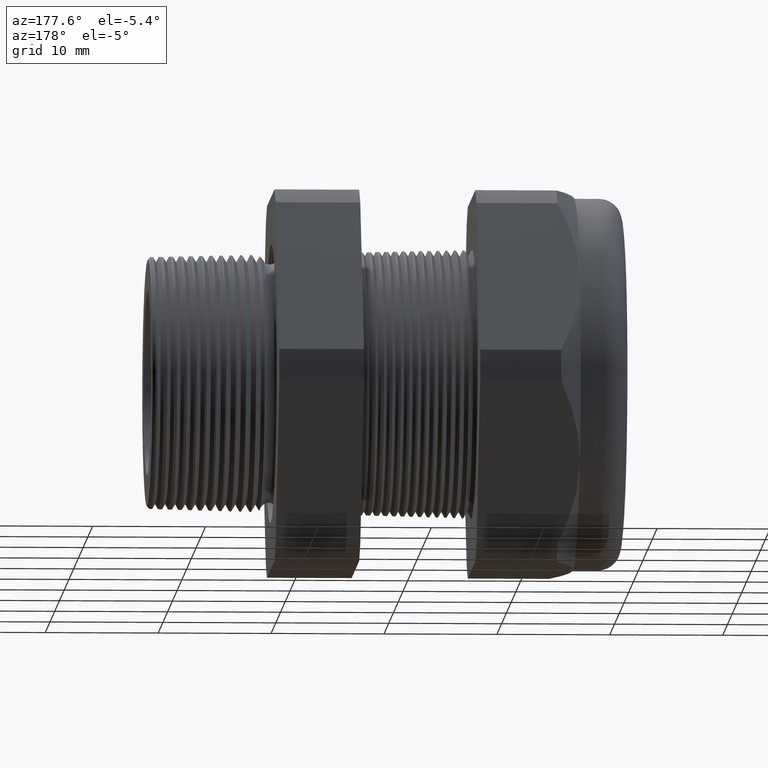
[diagram: clean part render]
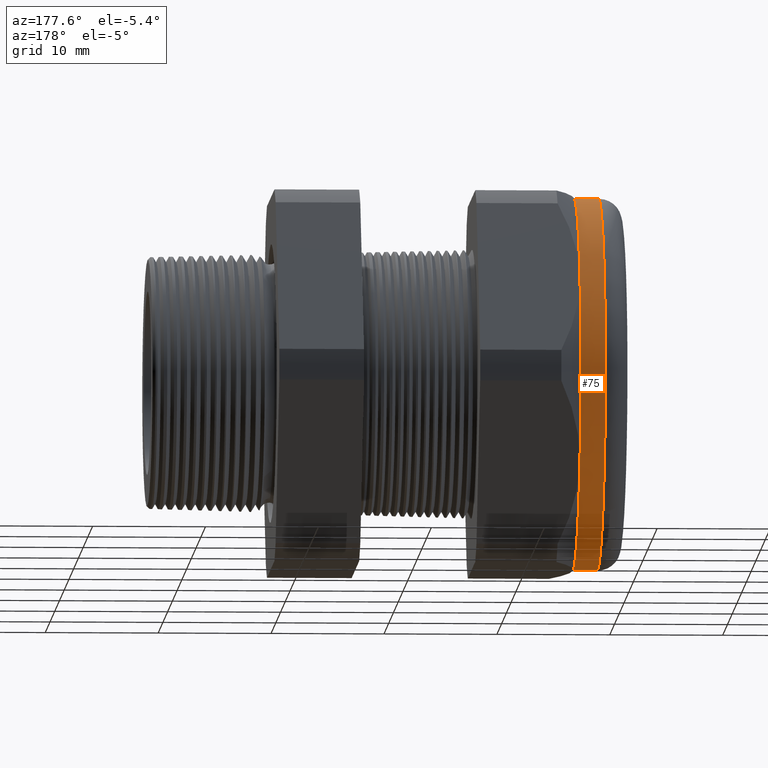
[diagram: same view with one face highlighted and labeled with its STEP entity id]
A machine part, auxiliary view. The second image highlights one B-rep face of the part: STEP entity #75.
In plain terms, the highlighted cylindrical surface (partial cylindrical patch) has radius 16.51 mm, axis along (1, 0, 0).
Its self-contained STEP definition (entity closure, byte-faithful):
#16 = VERTEX_POINT ( 'NONE', #887 ) ;
#29 = ORIENTED_EDGE ( 'NONE', *, *, #31, .F. ) ;
#31 = EDGE_CURVE ( 'NONE', #16, #33, #923, .T. ) ;
#33 = VERTEX_POINT ( 'NONE', #918 ) ;
#34 = EDGE_CURVE ( 'NONE', #33, #44, #917, .T. ) ;
#36 = ORIENTED_EDGE ( 'NONE', *, *, #34, .F. ) ;
#44 = VERTEX_POINT ( 'NONE', #960 ) ;
#69 = EDGE_CURVE ( 'NONE', #5062, #44, #990, .T. ) ;
#75 = ADVANCED_FACE ( 'NONE', ( #975 ), #1032, .T. ) ;
#76 = EDGE_LOOP ( 'NONE', ( #84, #78, #36, #29, #126, #112 ) ) ;
#78 = ORIENTED_EDGE ( 'NONE', *, *, #69, .T. ) ;
#84 = ORIENTED_EDGE ( 'NONE', *, *, #5061, .T. ) ;
#112 = ORIENTED_EDGE ( 'NONE', *, *, #137, .F. ) ;
#126 = ORIENTED_EDGE ( 'NONE', *, *, #128, .F. ) ;
#128 = EDGE_CURVE ( 'NONE', #136, #16, #1094, .T. ) ;
#136 = VERTEX_POINT ( 'NONE', #1084 ) ;
#137 = EDGE_CURVE ( 'NONE', #5057, #136, #1083, .T. ) ;
#887 = CARTESIAN_POINT ( 'NONE',  ( -1.364645669291338500, 0.5629165124598853900, -0.3249999999999999000 ) ) ;
#913 = DIRECTION ( 'NONE',  ( 0.0000000000000000000, 0.0000000000000000000, -1.000000000000000000 ) ) ;
#914 = DIRECTION ( 'NONE',  ( 1.000000000000000000, 0.0000000000000000000, 0.0000000000000000000 ) ) ;
#915 = CARTESIAN_POINT ( 'NONE',  ( -1.364645669291338200, 0.0000000000000000000, 0.0000000000000000000 ) ) ;
#916 = AXIS2_PLACEMENT_3D ( 'NONE', #915, #914, #913 ) ;
#917 = CIRCLE ( 'NONE', #916, 0.6499999999999999100 ) ;
#918 = CARTESIAN_POINT ( 'NONE',  ( -1.364645669291338500, 0.5629165124598856100, 0.3250000000000002300 ) ) ;
#919 = DIRECTION ( 'NONE',  ( 0.0000000000000000000, 0.0000000000000000000, -1.000000000000000000 ) ) ;
#920 = DIRECTION ( 'NONE',  ( 1.000000000000000000, 0.0000000000000000000, 0.0000000000000000000 ) ) ;
#921 = CARTESIAN_POINT ( 'NONE',  ( -1.364645669291338200, 0.0000000000000000000, 0.0000000000000000000 ) ) ;
#922 = AXIS2_PLACEMENT_3D ( 'NONE', #921, #920, #919 ) ;
#923 = CIRCLE ( 'NONE', #922, 0.6499999999999999100 ) ;
#960 = CARTESIAN_POINT ( 'NONE',  ( -1.364645669291338500, 0.0000000000000000000, 0.6499999999999999100 ) ) ;
#975 = FACE_OUTER_BOUND ( 'NONE', #76, .T. ) ;
#987 = DIRECTION ( 'NONE',  ( 1.000000000000000000, 0.0000000000000000000, 0.0000000000000000000 ) ) ;
#988 = VECTOR ( 'NONE', #987, 39.37007874015748100 ) ;
#989 = CARTESIAN_POINT ( 'NONE',  ( 0.0000000000000000000, 7.960204194457794200E-017, 0.6499999999999999100 ) ) ;
#990 = LINE ( 'NONE', #989, #988 ) ;
#1029 = DIRECTION ( 'NONE',  ( 0.0000000000000000000, 0.0000000000000000000, -1.000000000000000000 ) ) ;
#1030 = DIRECTION ( 'NONE',  ( 1.000000000000000000, 0.0000000000000000000, 0.0000000000000000000 ) ) ;
#1031 = AXIS2_PLACEMENT_3D ( 'NONE', #1034, #1030, #1029 ) ;
#1032 = CYLINDRICAL_SURFACE ( 'NONE', #1031, 0.6499999999999999100 ) ;
#1034 = CARTESIAN_POINT ( 'NONE',  ( 0.0000000000000000000, 0.0000000000000000000, 0.0000000000000000000 ) ) ;
#1080 = DIRECTION ( 'NONE',  ( 1.000000000000000000, 0.0000000000000000000, 0.0000000000000000000 ) ) ;
#1081 = VECTOR ( 'NONE', #1080, 39.37007874015748100 ) ;
#1082 = CARTESIAN_POINT ( 'NONE',  ( 0.0000000000000000000, 0.0000000000000000000, -0.6499999999999999100 ) ) ;
#1083 = LINE ( 'NONE', #1082, #1081 ) ;
#1084 = CARTESIAN_POINT ( 'NONE',  ( -1.364645669291338500, 0.0000000000000000000, -0.6500000000000001300 ) ) ;
#1089 = DIRECTION ( 'NONE',  ( 0.0000000000000000000, 0.0000000000000000000, -1.000000000000000000 ) ) ;
#1090 = DIRECTION ( 'NONE',  ( 1.000000000000000000, 0.0000000000000000000, 0.0000000000000000000 ) ) ;
#1091 = CARTESIAN_POINT ( 'NONE',  ( -1.364645669291338200, 0.0000000000000000000, 0.0000000000000000000 ) ) ;
#1092 = AXIS2_PLACEMENT_3D ( 'NONE', #1091, #1090, #1089 ) ;
#1094 = CIRCLE ( 'NONE', #1092, 0.6499999999999999100 ) ;
#3460 = DIRECTION ( 'NONE',  ( 1.000000000000000000, 0.0000000000000000000, 0.0000000000000000000 ) ) ;
#3461 = CARTESIAN_POINT ( 'NONE',  ( -1.449999999999999700, 0.0000000000000000000, 0.0000000000000000000 ) ) ;
#3462 = AXIS2_PLACEMENT_3D ( 'NONE', #3461, #3460, #3525 ) ;
#3463 = CIRCLE ( 'NONE', #3462, 0.6499999999999999100 ) ;
#3471 = CARTESIAN_POINT ( 'NONE',  ( -1.449999999999999700, 0.0000000000000000000, -0.6499999999999999100 ) ) ;
#3524 = CARTESIAN_POINT ( 'NONE',  ( -1.449999999999999700, 7.960204194457794200E-017, 0.6499999999999999100 ) ) ;
#3525 = DIRECTION ( 'NONE',  ( 0.0000000000000000000, 0.0000000000000000000, 1.000000000000000000 ) ) ;
#5057 = VERTEX_POINT ( 'NONE', #3471 ) ;
#5061 = EDGE_CURVE ( 'NONE', #5057, #5062, #3463, .T. ) ;
#5062 = VERTEX_POINT ( 'NONE', #3524 ) ;